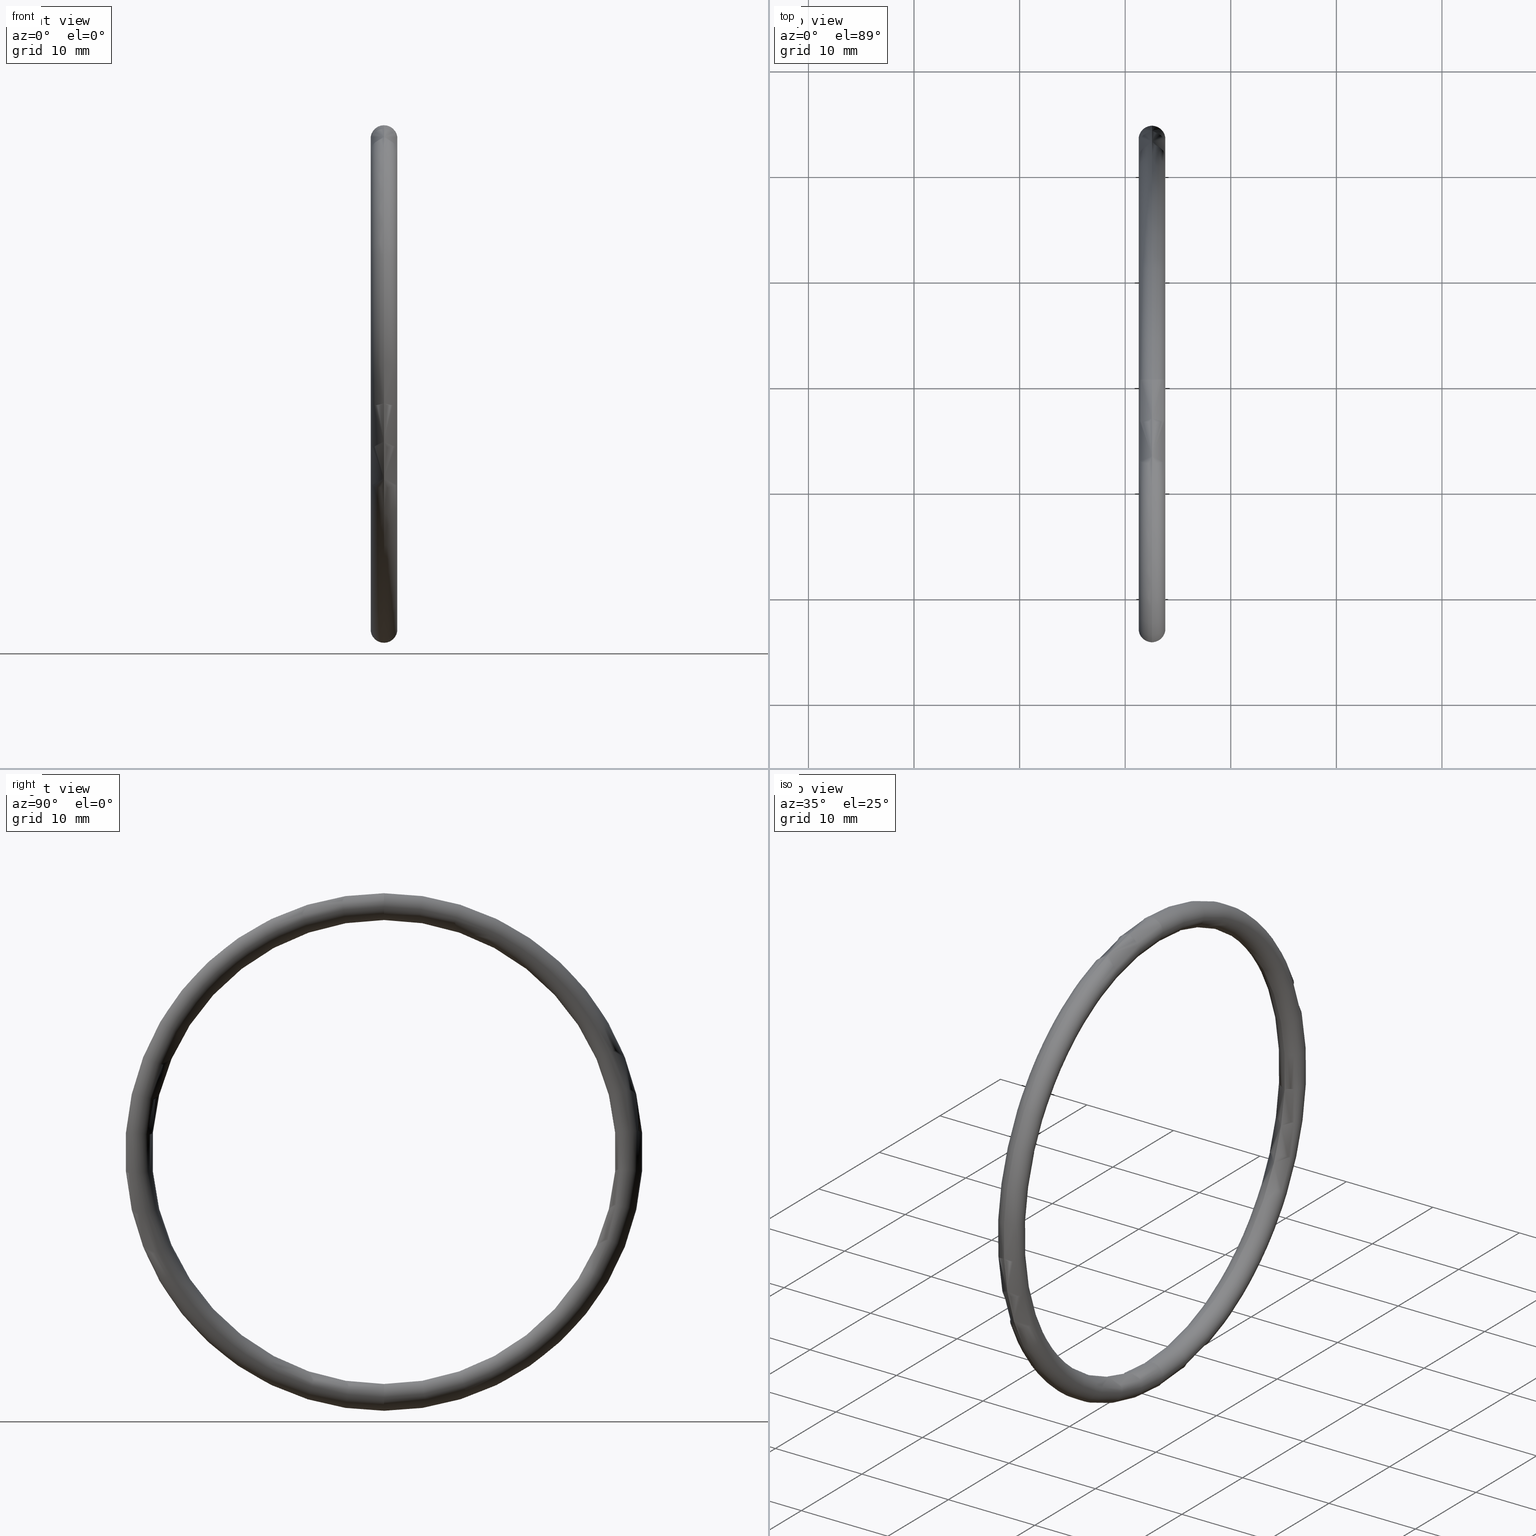
[diagram: canonical four-view strip — front | top / right | iso, engineering-drawing reading convention]
A machine part, canonical four-view strip (front | top / right | iso — engineering-drawing reading convention). The complete STEP part file that produces these views, byte-faithful:
ISO-10303-21;
HEADER;
FILE_DESCRIPTION (( 'STEP AP203' ),
    '1' );
FILE_NAME ('OR-36-SI.STEP',
    '2006-03-03T07:30:14',
    ( 'bay06' ),
    ( '' ),
    'SwSTEP 2.0',
    'SolidWorks 2008',
    '' );
FILE_SCHEMA (( 'CONFIG_CONTROL_DESIGN' ));
ENDSEC;

DATA;
#1 = DIRECTION ( 'NONE',  ( -1.000000000000000000, -0.0000000000000000000, -0.0000000000000000000 ) ) ;
#2 = DIRECTION ( 'NONE',  ( 0.0000000000000000000, 0.0000000000000000000, 1.000000000000000000 ) ) ;
#3 = DIRECTION ( 'NONE',  ( -1.000000000000000000, -0.0000000000000000000, -0.0000000000000000000 ) ) ;
#4 = DIRECTION ( 'NONE',  ( 0.0000000000000000000, 0.0000000000000000000, 1.000000000000000000 ) ) ;
#5 = CARTESIAN_POINT ( 'NONE',  ( 0.1000000000000001200, 0.0000000000000000000, 0.0000000000000000000 ) ) ;
#6 = DIRECTION ( 'NONE',  ( 0.0000000000000000000, 0.0000000000000000000, 1.000000000000000000 ) ) ;
#7 = DIRECTION ( 'NONE',  ( -1.000000000000000000, -0.0000000000000000000, -0.0000000000000000000 ) ) ;
#8 =( NAMED_UNIT ( * ) SI_UNIT ( $, .STERADIAN. ) SOLID_ANGLE_UNIT ( ) );
#9 =( CONVERSION_BASED_UNIT ( 'INCH', #118 ) LENGTH_UNIT ( ) NAMED_UNIT ( #119 ) );
#10 =( NAMED_UNIT ( * ) PLANE_ANGLE_UNIT ( ) SI_UNIT ( $, .RADIAN. ) );
#11 = CARTESIAN_POINT ( 'NONE',  ( 0.0000000000000000000, 0.0000000000000000000, 0.0000000000000000000 ) ) ;
#12 = DATE_AND_TIME ( #144, #145 ) ;
#13 = ORIENTED_EDGE ( 'NONE', *, *, #51, .F. ) ;
#14 = EDGE_LOOP ( 'NONE', ( #15, #23, #41, #18 ) ) ;
#15 = ORIENTED_EDGE ( 'NONE', *, *, #50, .F. ) ;
#16 = CIRCLE ( 'NONE', #30, 0.8649999999999998800 ) ;
#17 = VERTEX_POINT ( 'NONE', #21 ) ;
#18 = ORIENTED_EDGE ( 'NONE', *, *, #19, .F. ) ;
#19 = EDGE_CURVE ( 'NONE', #22, #17, #16, .T. ) ;
#20 = ADVANCED_FACE ( 'NONE', ( #31 ), #57, .T. ) ;
#21 = CARTESIAN_POINT ( 'NONE',  ( 0.1000000000000001200, 0.0000000000000000000, 0.8649999999999998800 ) ) ;
#22 = VERTEX_POINT ( 'NONE', #69 ) ;
#23 = ORIENTED_EDGE ( 'NONE', *, *, #24, .T. ) ;
#24 = EDGE_CURVE ( 'NONE', #44, #40, #68, .T. ) ;
#25 = ADVANCED_FACE ( 'NONE', ( #63 ), #71, .T. ) ;
#26 = ORIENTED_EDGE ( 'NONE', *, *, #24, .F. ) ;
#27 = DIRECTION ( 'NONE',  ( 0.0000000000000000000, 0.0000000000000000000, 1.000000000000000000 ) ) ;
#28 = DIRECTION ( 'NONE',  ( -1.000000000000000000, -0.0000000000000000000, -0.0000000000000000000 ) ) ;
#29 = CARTESIAN_POINT ( 'NONE',  ( 0.1000000000000001200, 0.0000000000000000000, 0.0000000000000000000 ) ) ;
#30 = AXIS2_PLACEMENT_3D ( 'NONE', #29, #28, #27 ) ;
#31 = FACE_OUTER_BOUND ( 'NONE', #37, .T. ) ;
#32 = ORIENTED_EDGE ( 'NONE', *, *, #47, .T. ) ;
#33 = CLOSED_SHELL ( 'NONE', ( #46, #20, #25, #53 ) ) ;
#34 = EDGE_LOOP ( 'NONE', ( #48, #13, #32, #49 ) ) ;
#35 = EDGE_LOOP ( 'NONE', ( #26, #59, #54, #52 ) ) ;
#36 = UNCERTAINTY_MEASURE_WITH_UNIT (LENGTH_MEASURE( 1.000000000000000100E-005 ), #9, 'distance_accuracy_value', 'NONE');
#37 = EDGE_LOOP ( 'NONE', ( #38, #39, #45, #58 ) ) ;
#38 = ORIENTED_EDGE ( 'NONE', *, *, #42, .F. ) ;
#39 = ORIENTED_EDGE ( 'NONE', *, *, #60, .T. ) ;
#40 = VERTEX_POINT ( 'NONE', #95 ) ;
#41 = ORIENTED_EDGE ( 'NONE', *, *, #42, .T. ) ;
#42 = EDGE_CURVE ( 'NONE', #40, #17, #79, .T. ) ;
#43 = EDGE_CURVE ( 'NONE', #22, #44, #93, .T. ) ;
#44 = VERTEX_POINT ( 'NONE', #94 ) ;
#45 = ORIENTED_EDGE ( 'NONE', *, *, #50, .T. ) ;
#46 = ADVANCED_FACE ( 'NONE', ( #74 ), #72, .T. ) ;
#47 = EDGE_CURVE ( 'NONE', #17, #22, #88, .T. ) ;
#48 = ORIENTED_EDGE ( 'NONE', *, *, #60, .F. ) ;
#49 = ORIENTED_EDGE ( 'NONE', *, *, #43, .T. ) ;
#50 = EDGE_CURVE ( 'NONE', #44, #22, #108, .T. ) ;
#51 = EDGE_CURVE ( 'NONE', #17, #40, #98, .T. ) ;
#52 = ORIENTED_EDGE ( 'NONE', *, *, #51, .T. ) ;
#53 = ADVANCED_FACE ( 'NONE', ( #100 ), #107, .T. ) ;
#54 = ORIENTED_EDGE ( 'NONE', *, *, #19, .T. ) ;
#55 = CARTESIAN_POINT ( 'NONE',  ( 0.1000000000000001200, 0.0000000000000000000, 0.0000000000000000000 ) ) ;
#56 = AXIS2_PLACEMENT_3D ( 'NONE', #55, #1, #2 ) ;
#57 = TOROIDAL_SURFACE ( 'NONE', #56, 0.9149999999999999200, 0.05000000000000000300 ) ;
#58 = ORIENTED_EDGE ( 'NONE', *, *, #47, .F. ) ;
#59 = ORIENTED_EDGE ( 'NONE', *, *, #43, .F. ) ;
#60 = EDGE_CURVE ( 'NONE', #40, #44, #114, .T. ) ;
#61 = MANIFOLD_SOLID_BREP ( 'NONE', #33 ) ;
#62 =( GEOMETRIC_REPRESENTATION_CONTEXT ( 3 ) GLOBAL_UNCERTAINTY_ASSIGNED_CONTEXT ( ( #36 ) ) GLOBAL_UNIT_ASSIGNED_CONTEXT ( ( #9, #10, #8 ) ) REPRESENTATION_CONTEXT ( 'NONE', 'WORKASPACE' ) );
#63 = FACE_OUTER_BOUND ( 'NONE', #34, .T. ) ;
#64 = ADVANCED_BREP_SHAPE_REPRESENTATION ( 'OR-36-SI', ( #61, #115 ), #62 ) ;
#65 = DIRECTION ( 'NONE',  ( 0.0000000000000000000, 0.0000000000000000000, 1.000000000000000000 ) ) ;
#66 = DIRECTION ( 'NONE',  ( -1.000000000000000000, -0.0000000000000000000, -0.0000000000000000000 ) ) ;
#67 = AXIS2_PLACEMENT_3D ( 'NONE', #70, #66, #65 ) ;
#68 = CIRCLE ( 'NONE', #67, 0.9649999999999999700 ) ;
#69 = CARTESIAN_POINT ( 'NONE',  ( 0.1000000000000001200, 1.059319481262460500E-016, -0.8649999999999998800 ) ) ;
#70 = CARTESIAN_POINT ( 'NONE',  ( 0.1000000000000001200, 0.0000000000000000000, 0.0000000000000000000 ) ) ;
#71 = TOROIDAL_SURFACE ( 'NONE', #83, 0.9149999999999999200, 0.05000000000000000300 ) ;
#72 = TOROIDAL_SURFACE ( 'NONE', #73, 0.9149999999999999200, 0.05000000000000000300 ) ;
#73 = AXIS2_PLACEMENT_3D ( 'NONE', #91, #90, #89 ) ;
#74 = FACE_OUTER_BOUND ( 'NONE', #14, .T. ) ;
#75 = DIRECTION ( 'NONE',  ( 0.0000000000000000000, -1.224646799147351700E-016, 1.000000000000000000 ) ) ;
#76 = DIRECTION ( 'NONE',  ( -0.0000000000000000000, 1.000000000000000000, 1.224646799147353200E-016 ) ) ;
#77 = CARTESIAN_POINT ( 'NONE',  ( 0.1000000000000001200, 0.0000000000000000000, 0.9149999999999999200 ) ) ;
#78 = AXIS2_PLACEMENT_3D ( 'NONE', #77, #84, #96 ) ;
#79 = CIRCLE ( 'NONE', #78, 0.05000000000000001000 ) ;
#80 = CARTESIAN_POINT ( 'NONE',  ( 0.1000000000000001200, 1.120551821219828000E-016, -0.9149999999999999200 ) ) ;
#81 = DIRECTION ( 'NONE',  ( 0.0000000000000000000, 0.0000000000000000000, 1.000000000000000000 ) ) ;
#82 = CARTESIAN_POINT ( 'NONE',  ( 0.1000000000000001200, 0.0000000000000000000, 0.0000000000000000000 ) ) ;
#83 = AXIS2_PLACEMENT_3D ( 'NONE', #82, #85, #81 ) ;
#84 = DIRECTION ( 'NONE',  ( 0.0000000000000000000, -1.000000000000000000, 0.0000000000000000000 ) ) ;
#85 = DIRECTION ( 'NONE',  ( -1.000000000000000000, -0.0000000000000000000, -0.0000000000000000000 ) ) ;
#86 = CARTESIAN_POINT ( 'NONE',  ( 0.1000000000000001200, 0.0000000000000000000, 0.0000000000000000000 ) ) ;
#87 = AXIS2_PLACEMENT_3D ( 'NONE', #86, #3, #4 ) ;
#88 = CIRCLE ( 'NONE', #87, 0.8649999999999998800 ) ;
#89 = DIRECTION ( 'NONE',  ( 0.0000000000000000000, 0.0000000000000000000, 1.000000000000000000 ) ) ;
#90 = DIRECTION ( 'NONE',  ( -1.000000000000000000, -0.0000000000000000000, -0.0000000000000000000 ) ) ;
#91 = CARTESIAN_POINT ( 'NONE',  ( 0.1000000000000001200, 0.0000000000000000000, 0.0000000000000000000 ) ) ;
#92 = AXIS2_PLACEMENT_3D ( 'NONE', #80, #76, #75 ) ;
#93 = CIRCLE ( 'NONE', #92, 0.05000000000000001000 ) ;
#94 = CARTESIAN_POINT ( 'NONE',  ( 0.1000000000000001200, 1.181784161177195800E-016, -0.9649999999999999700 ) ) ;
#95 = CARTESIAN_POINT ( 'NONE',  ( 0.1000000000000001200, 0.0000000000000000000, 0.9649999999999999700 ) ) ;
#96 = DIRECTION ( 'NONE',  ( 0.0000000000000000000, 0.0000000000000000000, -1.000000000000000000 ) ) ;
#97 = DIRECTION ( 'NONE',  ( 0.0000000000000000000, -1.224646799147351700E-016, 1.000000000000000000 ) ) ;
#98 = CIRCLE ( 'NONE', #105, 0.05000000000000001000 ) ;
#99 = CARTESIAN_POINT ( 'NONE',  ( 0.1000000000000001200, 1.120551821219828000E-016, -0.9149999999999999200 ) ) ;
#100 = FACE_OUTER_BOUND ( 'NONE', #35, .T. ) ;
#101 = DIRECTION ( 'NONE',  ( 0.0000000000000000000, 0.0000000000000000000, -1.000000000000000000 ) ) ;
#102 = DIRECTION ( 'NONE',  ( -0.0000000000000000000, 1.000000000000000000, 1.224646799147353200E-016 ) ) ;
#103 = CARTESIAN_POINT ( 'NONE',  ( 0.1000000000000001200, 0.0000000000000000000, 0.9149999999999999200 ) ) ;
#104 = AXIS2_PLACEMENT_3D ( 'NONE', #99, #102, #97 ) ;
#105 = AXIS2_PLACEMENT_3D ( 'NONE', #103, #111, #101 ) ;
#106 = AXIS2_PLACEMENT_3D ( 'NONE', #112, #110, #109 ) ;
#107 = TOROIDAL_SURFACE ( 'NONE', #106, 0.9149999999999999200, 0.05000000000000000300 ) ;
#108 = CIRCLE ( 'NONE', #104, 0.05000000000000001000 ) ;
#109 = DIRECTION ( 'NONE',  ( 0.0000000000000000000, 0.0000000000000000000, 1.000000000000000000 ) ) ;
#110 = DIRECTION ( 'NONE',  ( -1.000000000000000000, -0.0000000000000000000, -0.0000000000000000000 ) ) ;
#111 = DIRECTION ( 'NONE',  ( 0.0000000000000000000, -1.000000000000000000, 0.0000000000000000000 ) ) ;
#112 = CARTESIAN_POINT ( 'NONE',  ( 0.1000000000000001200, 0.0000000000000000000, 0.0000000000000000000 ) ) ;
#113 = AXIS2_PLACEMENT_3D ( 'NONE', #5, #7, #6 ) ;
#114 = CIRCLE ( 'NONE', #113, 0.9649999999999999700 ) ;
#115 = AXIS2_PLACEMENT_3D ( 'NONE', #11, #116, #117 ) ;
#116 = DIRECTION ( 'NONE',  ( 0.0000000000000000000, 0.0000000000000000000, 1.000000000000000000 ) ) ;
#117 = DIRECTION ( 'NONE',  ( 1.000000000000000000, 0.0000000000000000000, 0.0000000000000000000 ) ) ;
#118 = LENGTH_MEASURE_WITH_UNIT ( LENGTH_MEASURE( 0.02539999999999999900 ), #120 );
#119 = DIMENSIONAL_EXPONENTS ( 1.000000000000000000, 0.0000000000000000000, 0.0000000000000000000, 0.0000000000000000000, 0.0000000000000000000, 0.0000000000000000000, 0.0000000000000000000 ) ;
#120 =( LENGTH_UNIT ( ) NAMED_UNIT ( * ) SI_UNIT ( $, .METRE. ) );
#121 = APPROVAL_DATE_TIME ( #12, #149 ) ;
#122 = PRODUCT ( 'OR-36-SI', 'OR-36-SI', '', ( #123 ) ) ;
#123 = MECHANICAL_CONTEXT ( 'NONE', #125, 'mechanical' ) ;
#124 = APPLICATION_PROTOCOL_DEFINITION ( 'international standard', 'config_control_design', 1994, #125 ) ;
#125 = APPLICATION_CONTEXT ( 'configuration controlled 3d designs of mechanical parts and assemblies' ) ;
#126 = PERSON ( 'UNSPECIFIED', 'UNSPECIFIED', 'UNSPECIFIED', ('UNSPECIFIED'), ('UNSPECIFIED'), ('UNSPECIFIED') ) ;
#127 = ORGANIZATION ( 'UNSPECIFIED', 'UNSPECIFIED', '' ) ;
#128 = CC_DESIGN_PERSON_AND_ORGANIZATION_ASSIGNMENT ( #131, #162, ( #122 ) ) ;
#129 = PERSON_AND_ORGANIZATION ( #126, #127 ) ;
#130 = PRODUCT_DEFINITION ( 'UNKNOWN', '', #152, #135 ) ;
#131 = PERSON_AND_ORGANIZATION ( #126, #127 ) ;
#132 = APPLICATION_CONTEXT ( 'configuration controlled 3d designs of mechanical parts and assemblies' ) ;
#133 = APPROVAL ( #134, 'UNSPECIFIED' ) ;
#134 = APPROVAL_STATUS ( 'not_yet_approved' ) ;
#135 = DESIGN_CONTEXT ( 'detailed design', #132, 'design' ) ;
#136 = CC_DESIGN_APPROVAL ( #133, ( #130 ) ) ;
#137 = APPROVAL_DATE_TIME ( #138, #133 ) ;
#138 = DATE_AND_TIME ( #139, #140 ) ;
#139 = CALENDAR_DATE ( 2006, 3, 3 ) ;
#140 = LOCAL_TIME ( 13, 0, 14.00000000000000000, #141 ) ;
#141 = COORDINATED_UNIVERSAL_TIME_OFFSET ( 5, 30, .AHEAD. ) ;
#142 = APPROVAL_PERSON_ORGANIZATION ( #129, #133, #143 ) ;
#143 = APPROVAL_ROLE ( '' ) ;
#144 = CALENDAR_DATE ( 2006, 3, 3 ) ;
#145 = LOCAL_TIME ( 13, 0, 14.00000000000000000, #146 ) ;
#146 = COORDINATED_UNIVERSAL_TIME_OFFSET ( 5, 30, .AHEAD. ) ;
#147 = APPROVAL_PERSON_ORGANIZATION ( #151, #149, #148 ) ;
#148 = APPROVAL_ROLE ( '' ) ;
#149 = APPROVAL ( #150, 'UNSPECIFIED' ) ;
#150 = APPROVAL_STATUS ( 'not_yet_approved' ) ;
#151 = PERSON_AND_ORGANIZATION ( #126, #127 ) ;
#152 = PRODUCT_DEFINITION_FORMATION_WITH_SPECIFIED_SOURCE ( 'ANY', '', #122, .NOT_KNOWN. ) ;
#153 = CC_DESIGN_DATE_AND_TIME_ASSIGNMENT ( #155, #154, ( #130 ) ) ;
#154 = DATE_TIME_ROLE ( 'creation_date' ) ;
#155 = DATE_AND_TIME ( #156, #157 ) ;
#156 = CALENDAR_DATE ( 2006, 3, 3 ) ;
#157 = LOCAL_TIME ( 13, 0, 14.00000000000000000, #158 ) ;
#158 = COORDINATED_UNIVERSAL_TIME_OFFSET ( 5, 30, .AHEAD. ) ;
#159 = CC_DESIGN_PERSON_AND_ORGANIZATION_ASSIGNMENT ( #161, #160, ( #130 ) ) ;
#160 = PERSON_AND_ORGANIZATION_ROLE ( 'creator' ) ;
#161 = PERSON_AND_ORGANIZATION ( #126, #127 ) ;
#162 = PERSON_AND_ORGANIZATION_ROLE ( 'design_owner' ) ;
#163 = APPLICATION_PROTOCOL_DEFINITION ( 'international standard', 'config_control_design', 1994, #132 ) ;
#164 = SECURITY_CLASSIFICATION_LEVEL ( 'unclassified' ) ;
#165 = CC_DESIGN_PERSON_AND_ORGANIZATION_ASSIGNMENT ( #166, #179, ( #152 ) ) ;
#166 = PERSON_AND_ORGANIZATION ( #126, #127 ) ;
#167 = CC_DESIGN_PERSON_AND_ORGANIZATION_ASSIGNMENT ( #169, #168, ( #170 ) ) ;
#168 = PERSON_AND_ORGANIZATION_ROLE ( 'classification_officer' ) ;
#169 = PERSON_AND_ORGANIZATION ( #126, #127 ) ;
#170 = SECURITY_CLASSIFICATION ( '', '', #164 ) ;
#171 = DATE_AND_TIME ( #176, #177 ) ;
#172 = APPROVAL_STATUS ( 'not_yet_approved' ) ;
#173 = PERSON_AND_ORGANIZATION ( #126, #127 ) ;
#174 = CC_DESIGN_DATE_AND_TIME_ASSIGNMENT ( #171, #175, ( #170 ) ) ;
#175 = DATE_TIME_ROLE ( 'classification_date' ) ;
#176 = CALENDAR_DATE ( 2006, 3, 3 ) ;
#177 = LOCAL_TIME ( 13, 0, 14.00000000000000000, #178 ) ;
#178 = COORDINATED_UNIVERSAL_TIME_OFFSET ( 5, 30, .AHEAD. ) ;
#179 = PERSON_AND_ORGANIZATION_ROLE ( 'creator' ) ;
#180 = CC_DESIGN_PERSON_AND_ORGANIZATION_ASSIGNMENT ( #182, #181, ( #152 ) ) ;
#181 = PERSON_AND_ORGANIZATION_ROLE ( 'design_supplier' ) ;
#182 = PERSON_AND_ORGANIZATION ( #126, #127 ) ;
#183 = CC_DESIGN_APPROVAL ( #149, ( #152 ) ) ;
#184 = CC_DESIGN_SECURITY_CLASSIFICATION ( #170, ( #152 ) ) ;
#185 = CC_DESIGN_APPROVAL ( #192, ( #170 ) ) ;
#186 = APPROVAL_DATE_TIME ( #187, #192 ) ;
#187 = DATE_AND_TIME ( #188, #189 ) ;
#188 = CALENDAR_DATE ( 2006, 3, 3 ) ;
#189 = LOCAL_TIME ( 13, 0, 14.00000000000000000, #190 ) ;
#190 = COORDINATED_UNIVERSAL_TIME_OFFSET ( 5, 30, .AHEAD. ) ;
#191 = APPROVAL_PERSON_ORGANIZATION ( #173, #192, #196 ) ;
#192 = APPROVAL ( #172, 'UNSPECIFIED' ) ;
#193 = SHAPE_DEFINITION_REPRESENTATION ( #194, #64 ) ;
#194 = PRODUCT_DEFINITION_SHAPE ( 'NONE', 'NONE',  #130 ) ;
#195 = PRODUCT_RELATED_PRODUCT_CATEGORY ( 'detail', '', ( #122 ) ) ;
#196 = APPROVAL_ROLE ( '' ) ;
ENDSEC;
END-ISO-10303-21;
